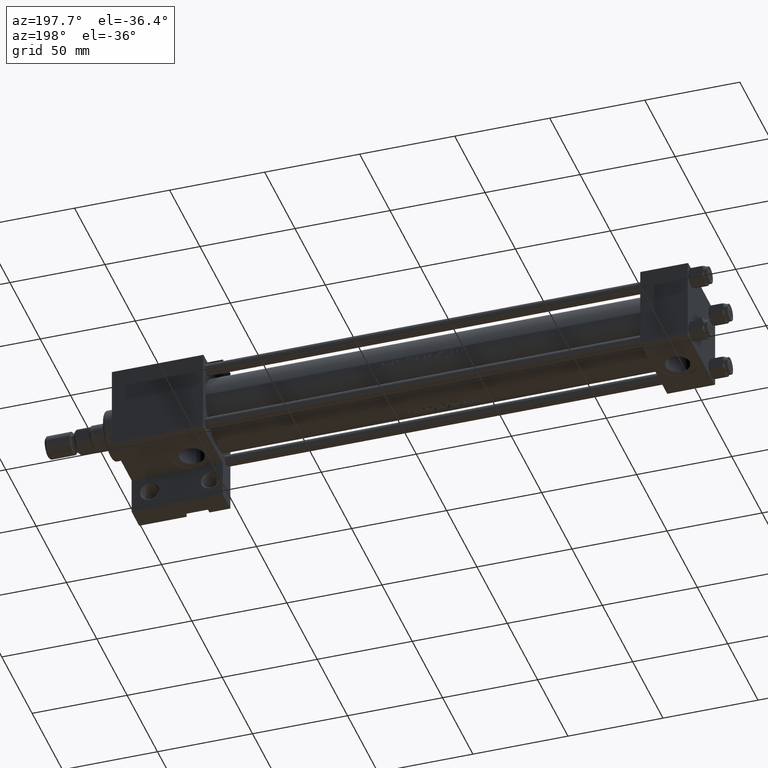
[diagram: clean part render]
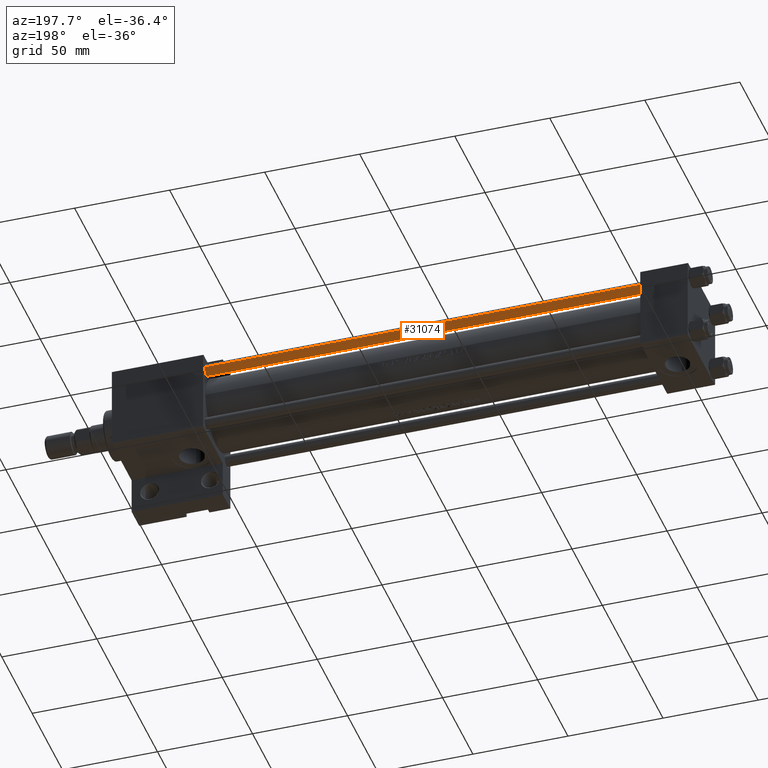
[diagram: same view with one face highlighted and labeled with its STEP entity id]
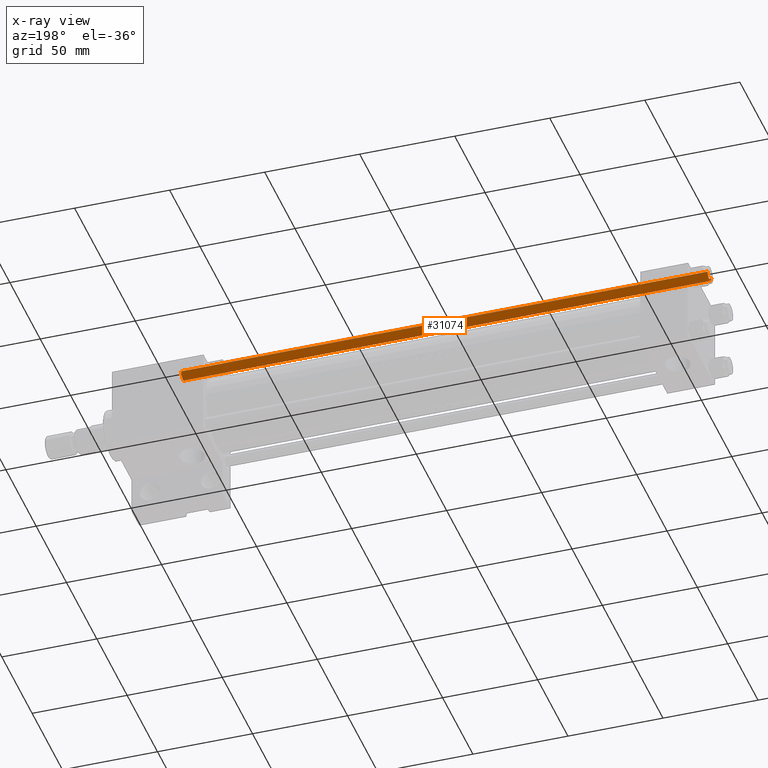
[diagram: x-ray of the same camera — body ghosted, the highlighted face saturated]
A machine part, auxiliary view. The second image highlights one B-rep face of the part: STEP entity #31074.
The next image is the same camera in x-ray: the body ghosted, the highlighted face saturated — about 0% of this face is hidden behind the body in this view.
In plain terms, the highlighted cylindrical surface (edge-blend (fillet) strip) has radius 3 mm, axis along (1, -0, 0).
Its self-contained STEP definition (entity closure, byte-faithful):
#543 = CARTESIAN_POINT ( 'NONE',  ( 0.000000000000000000, 0.000000000000000000, 278.0000000000000000 ) ) ;
#781 = FACE_OUTER_BOUND ( 'NONE', #1113, .T. ) ;
#1113 = EDGE_LOOP ( 'NONE', ( #29497, #46546, #18368, #41492 ) ) ;
#3023 = DIRECTION ( 'NONE',  ( -0.000000000000000000, -0.000000000000000000, -1.000000000000000000 ) ) ;
#3942 = CARTESIAN_POINT ( 'NONE',  ( 0.000000000000000000, 0.000000000000000000, 277.5000000000000568 ) ) ;
#5741 = AXIS2_PLACEMENT_3D ( 'NONE', #3942, #18802, #15616 ) ;
#6102 = VERTEX_POINT ( 'NONE', #21580 ) ;
#6957 = EDGE_CURVE ( 'NONE', #18164, #13117, #37465, .T. ) ;
#7300 = EDGE_CURVE ( 'NONE', #6102, #43637, #31761, .T. ) ;
#9622 = CIRCLE ( 'NONE', #5741, 3.000000000000000444 ) ;
#10134 = AXIS2_PLACEMENT_3D ( 'NONE', #31232, #35354, #46083 ) ;
#12715 = CARTESIAN_POINT ( 'NONE',  ( -3.000000000000000444, 0.000000000000000000, 277.5000000000000568 ) ) ;
#12919 = VECTOR ( 'NONE', #3023, 1000.000000000000000 ) ;
#13117 = VERTEX_POINT ( 'NONE', #48142 ) ;
#13735 = VECTOR ( 'NONE', #15529, 1000.000000000000000 ) ;
#14451 = CARTESIAN_POINT ( 'NONE',  ( 3.000000000000000444, 3.673940397442060361E-16, 278.0000000000000000 ) ) ;
#15389 = DIRECTION ( 'NONE',  ( -0.000000000000000000, -0.000000000000000000, -1.000000000000000000 ) ) ;
#15529 = DIRECTION ( 'NONE',  ( -0.000000000000000000, -0.000000000000000000, -1.000000000000000000 ) ) ;
#15616 = DIRECTION ( 'NONE',  ( 1.000000000000000000, 0.000000000000000000, 0.000000000000000000 ) ) ;
#18164 = VERTEX_POINT ( 'NONE', #12715 ) ;
#18368 = ORIENTED_EDGE ( 'NONE', *, *, #39148, .T. ) ;
#18802 = DIRECTION ( 'NONE',  ( 0.000000000000000000, 0.000000000000000000, -1.000000000000000000 ) ) ;
#19762 = CYLINDRICAL_SURFACE ( 'NONE', #32315, 3.000000000000000444 ) ;
#21580 = CARTESIAN_POINT ( 'NONE',  ( 3.000000000000000444, 3.673940397442060361E-16, 277.5000000000000568 ) ) ;
#22837 = CARTESIAN_POINT ( 'NONE',  ( -3.000000000000000444, 0.000000000000000000, 278.0000000000000000 ) ) ;
#27875 = EDGE_CURVE ( 'NONE', #18164, #6102, #9622, .T. ) ;
#29497 = ORIENTED_EDGE ( 'NONE', *, *, #27875, .T. ) ;
#31074 = ADVANCED_FACE ( 'NONE', ( #781 ), #19762, .T. ) ;
#31232 = CARTESIAN_POINT ( 'NONE',  ( 0.000000000000000000, 0.000000000000000000, 0.5000000000000559552 ) ) ;
#31761 = LINE ( 'NONE', #14451, #12919 ) ;
#32315 = AXIS2_PLACEMENT_3D ( 'NONE', #543, #15389, #37558 ) ;
#34388 = CARTESIAN_POINT ( 'NONE',  ( 3.000000000000000444, 3.673940397442060361E-16, 0.5000000000000559552 ) ) ;
#35354 = DIRECTION ( 'NONE',  ( -0.000000000000000000, -0.000000000000000000, 1.000000000000000000 ) ) ;
#37465 = LINE ( 'NONE', #22837, #13735 ) ;
#37558 = DIRECTION ( 'NONE',  ( -1.000000000000000000, 0.000000000000000000, 0.000000000000000000 ) ) ;
#39148 = EDGE_CURVE ( 'NONE', #43637, #13117, #39694, .T. ) ;
#39694 = CIRCLE ( 'NONE', #10134, 3.000000000000000444 ) ;
#41492 = ORIENTED_EDGE ( 'NONE', *, *, #6957, .F. ) ;
#43637 = VERTEX_POINT ( 'NONE', #34388 ) ;
#46083 = DIRECTION ( 'NONE',  ( 1.000000000000000000, 0.000000000000000000, 0.000000000000000000 ) ) ;
#46546 = ORIENTED_EDGE ( 'NONE', *, *, #7300, .T. ) ;
#48142 = CARTESIAN_POINT ( 'NONE',  ( -3.000000000000000444, 0.000000000000000000, 0.5000000000000559552 ) ) ;